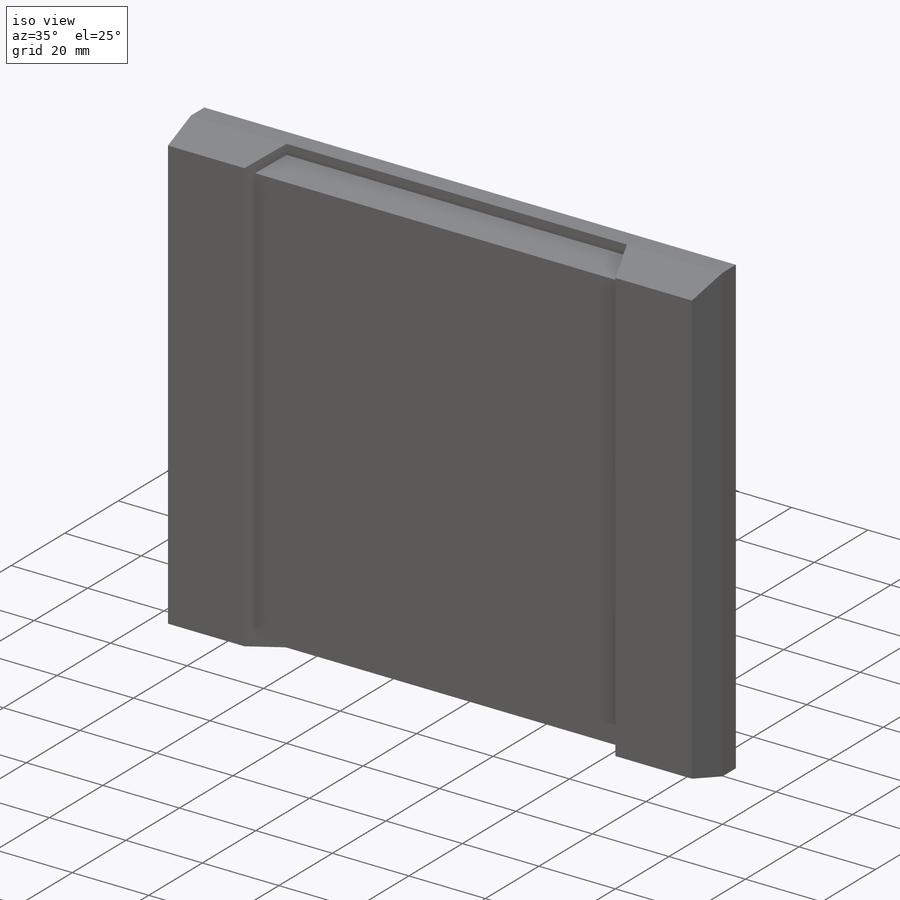
[diagram: iso view]
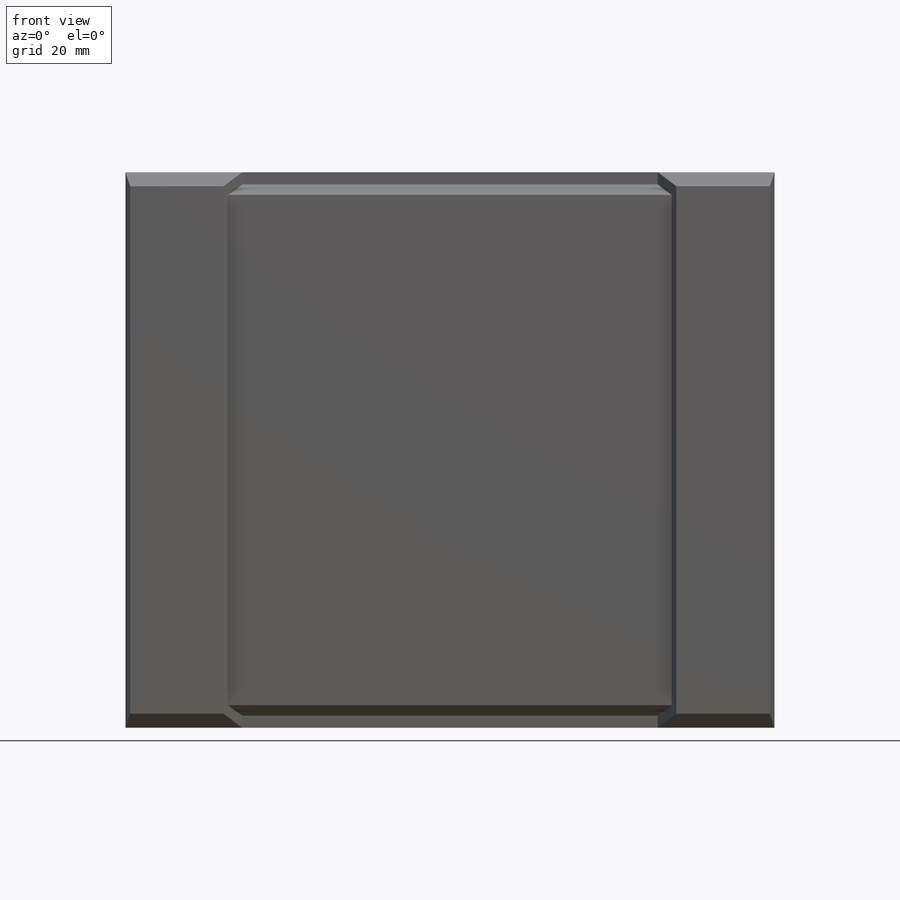
[diagram: front view]
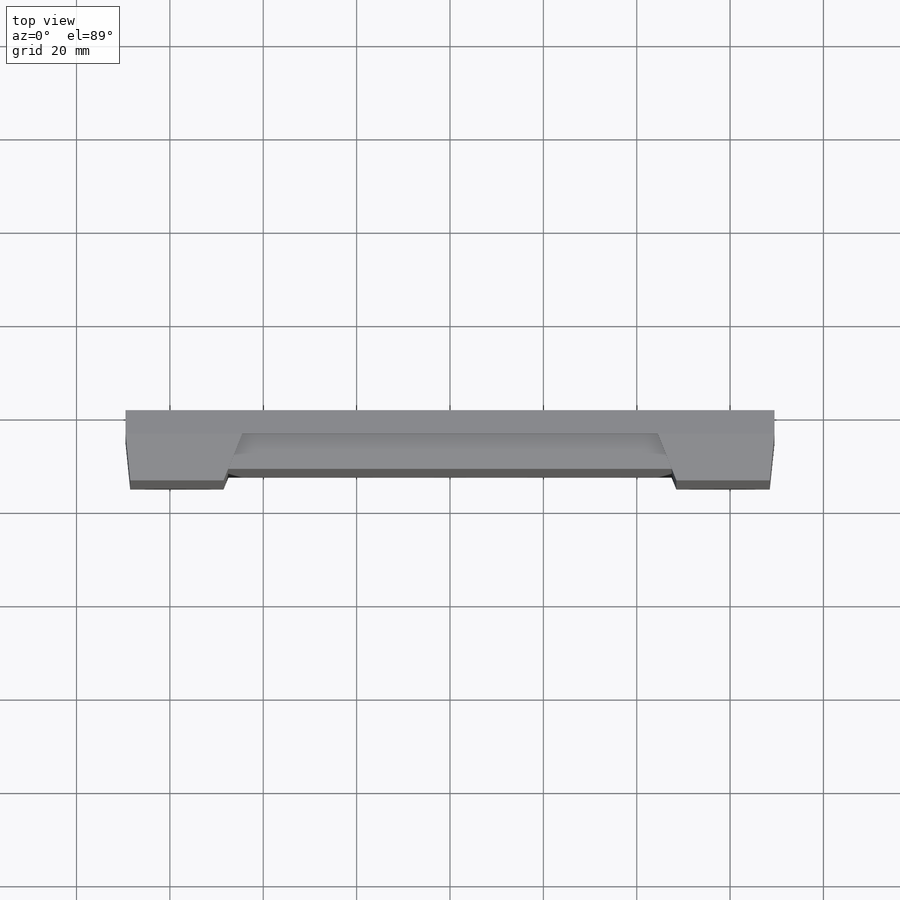
[diagram: top view]
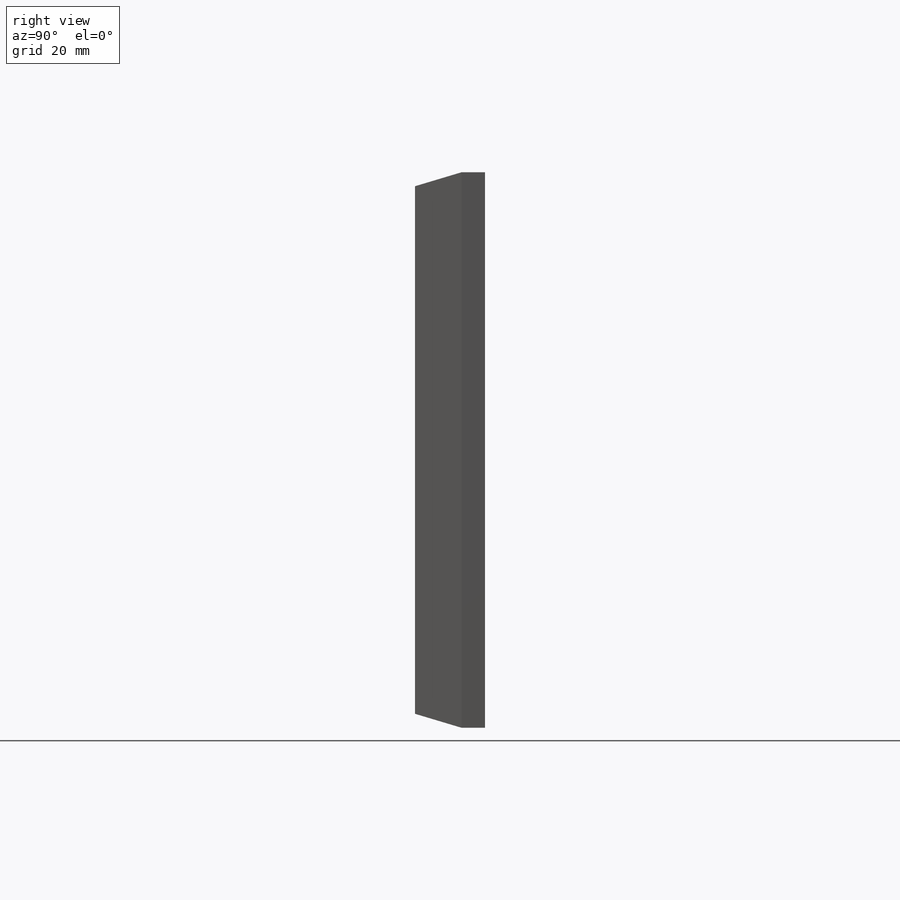
[diagram: right view]
SOLIDWORKS PART (.sldprt)
format: sldprt  version: not decoded by parser v0  size: 211,456 bytes
history: native  units: mm
features: sketch x6, plane x4, cut_extrude x2, material x1, extrude x1, mirror x1 (+8 scaffold rows collapsed)
feature tree (23):
  scaffold x8  (default folders/planes/origin — collapsed)
  material  "Material <nicht festgelegt>"
  plane  "Ebene vorne"
  plane  "Ebene oben"
  plane  "Ebene rechts"
  sketch  "Skizze1"  dims[D1=139.0mm D2=119.0mm]
  extrude  "Aufsatz-Linear austragen1"  Depth=5mm
  sketch  "Skizze2"
  plane  "Ebene1"  Offset=10mm
  sketch  "Skizze3"  dims[D1=137.0mm D2=113.0mm]
  sketch  "3D-Skizze1"  dims[c1.D1=113.0mm c2.D1=~104.782442deg c3.D1=20.0mm c3.D2=26.0mm c3.D3=26.0mm c3.D4=20.0mm c3.D5=26.0mm c3.D6=26.0mm]
  sketch  "Skizze5"  dims[c1.D1=10.0mm c2.D1=~21.801409deg c3.D1=~10.77033mm c4.D1=~21.801409deg]
  cut_extrude  "Schnitt Oben"  Depth=2.5mm
  mirror  "Spiegeln Oben"
  sketch  "Skizze4"
  cut_extrude  "Schnitt Vorne"  Depth=2.5mm
decode coverage: 7 of 10 modeling features carry decoded parameters
note: ~ marks probable driven/reference dimensions
note: suppression state not decoded; provenance and decode notes live in map.json
